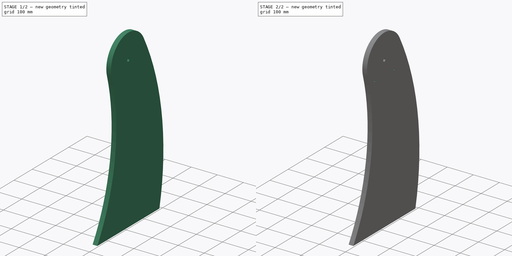
[diagram: build sequence overview — one tinted view per stage of 2, left to right]
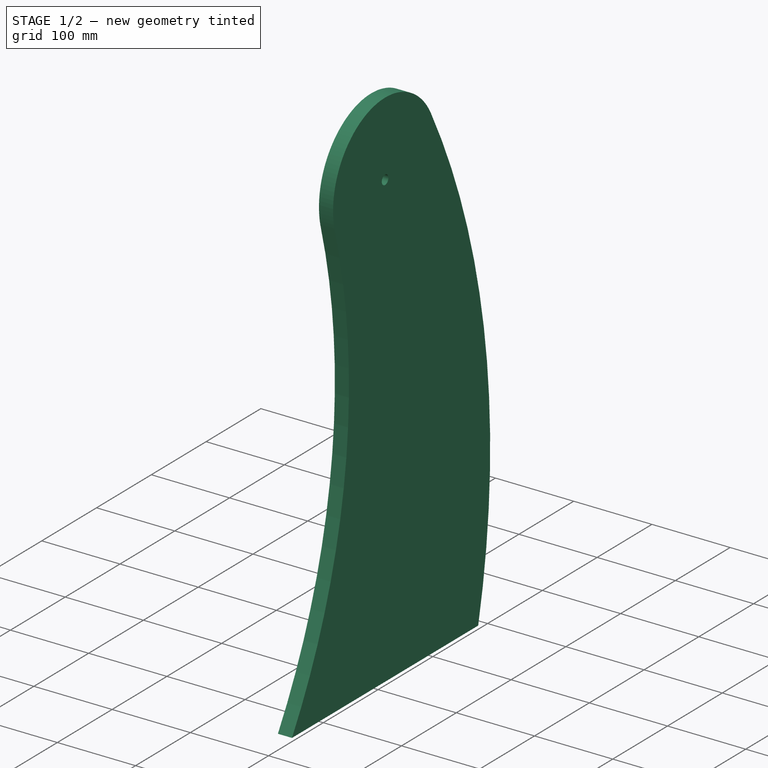
[diagram: stage 1 of 2 — iso view after this stage's code; geometry added in this stage tinted green]
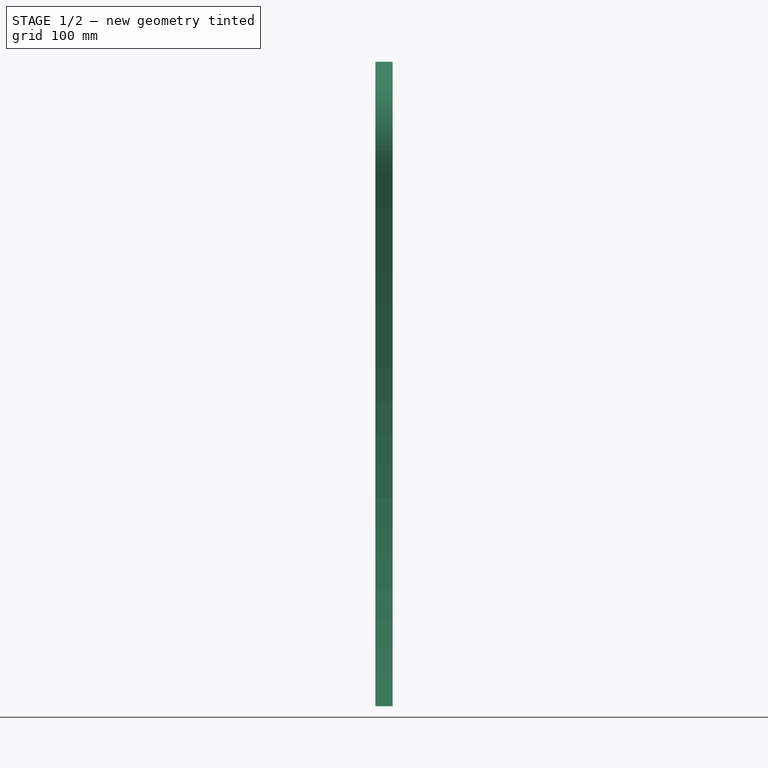
[diagram: stage 1 of 2 — front view after this stage's code; geometry added in this stage tinted green]
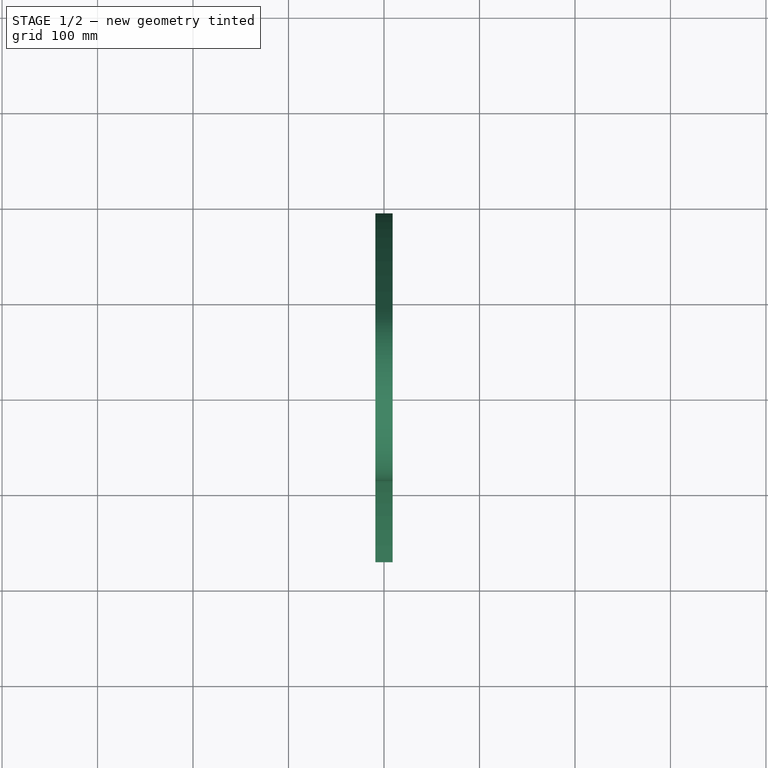
[diagram: stage 1 of 2 — top view after this stage's code; geometry added in this stage tinted green]
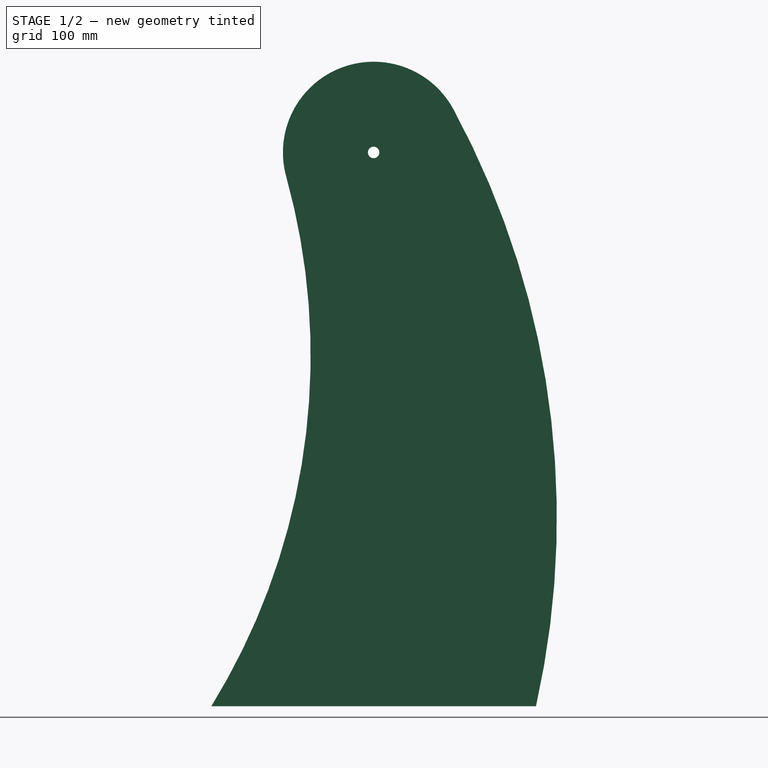
[diagram: stage 1 of 2 — right view after this stage's code; geometry added in this stage tinted green]
FCSTD DOCUMENT  (FreeCAD 2020.10.16R22739 +2665 (Git))
Label: plyta-boczna
License: All rights reserved
LicenseURL: http://en.wikipedia.org/wiki/All_rights_reserved
objects: Sketcher::SketchObject×3, PartDesign::Pad×1, PartDesign::Pocket×1, PartDesign::Line×1, PartDesign::Body×1
note: 11 computed .brp shape members not serialized (recipe doc carries the construction recipe); baked Part::Feature solids carry a one-line shape summary decoded from their .brp

FEATURE [Sketcher::SketchObject] Sketch
  MapMode = 5
  Placement = pos=(0,0,0) rot=(0.57735,0.57735,0.57735;2.0944rad)
  Support = -> [YZ_Plane]
  sketch-geometry (5):
    g0: ArcOfCircle CenterX=0 CenterY=580 CenterZ=0 NormalX=0 NormalY=0 NormalZ=1 AngleXU=0 Radius=95 StartAngle=0.495618 EndAngle=3.41262
    g1: ArcOfCircle CenterX=-765.98 CenterY=367.162 CenterZ=0 NormalX=0 NormalY=0 NormalZ=1 AngleXU=0 Radius=700 StartAngle=5.73104 EndAngle=6.55421
    g2: ArcOfCircle CenterX=-708.138 CenterY=197.162 CenterZ=0 NormalX=0 NormalY=0 NormalZ=1 AngleXU=0 Radius=900 StartAngle=6.06233 EndAngle=6.7788
    g3: LineSegment StartX=-170 StartY=0 StartZ=0 EndX=170 EndY=0 EndZ=0
    g4: Circle CenterX=0 CenterY=580 CenterZ=0 NormalX=0 NormalY=0 NormalZ=1 AngleXU=0 Radius=6
  constraints (16):
    c: PointOnObject(g0,g-2)
    c: Radius(g0) = 95
    c: DistanceY(g-1,g0) = 580
    c: PointOnObject(g1,g-1)
    c: PointOnObject(g2,g-1)
    c: Tangent(g2,g0)
    c: Coincident(g3,g1)
    c: Coincident(g3,g2)
    c: DistanceX(g3,g3) = 340
    c: DistanceX(g1,g-1) = 170
    c: Radius(g1) = 700
    c: Radius(g2) = 900
    c: Coincident(g0,g2)
    c: Tangent(g0,g1) = 1.5708
    c: Coincident(g4,g0)
    c: Radius(g4) = 6
FEATURE [PartDesign::Pad] Pad
  AllowMultiFace = false
  ClaimChildren = false
  Direction = (1,1,1)
  Length = 18
  Length2 = 100
  Midplane = true
  NewSolid = false
  Placement = pos=(0,0,0) rot=(0.57735,0.57735,0.57735;2.0944rad)
  Profile = -> Sketch
  Suppress = false
  Type = 0
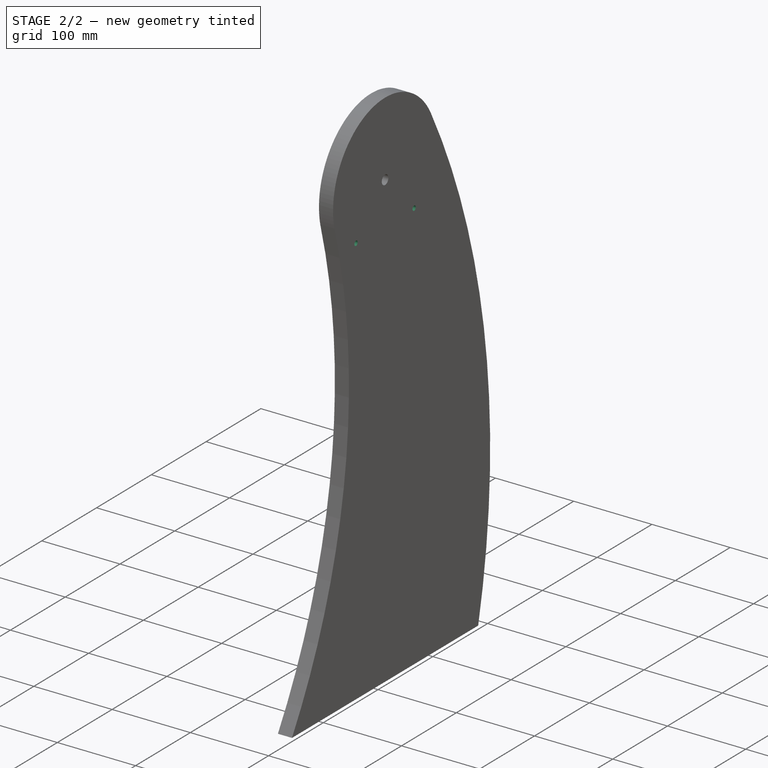
[diagram: stage 2 of 2 — iso view after this stage's code; geometry added in this stage tinted green]
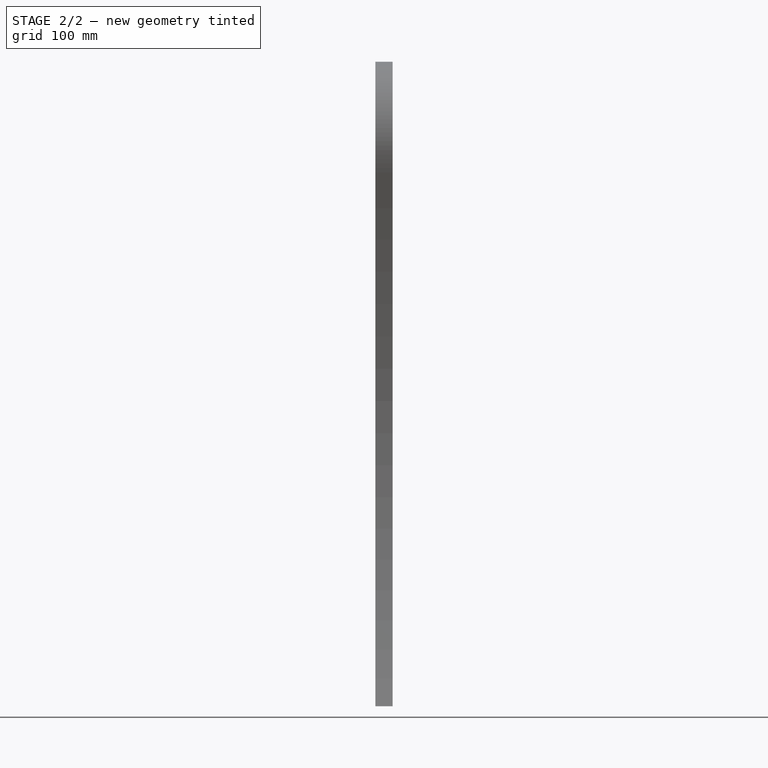
[diagram: stage 2 of 2 — front view after this stage's code; geometry added in this stage tinted green]
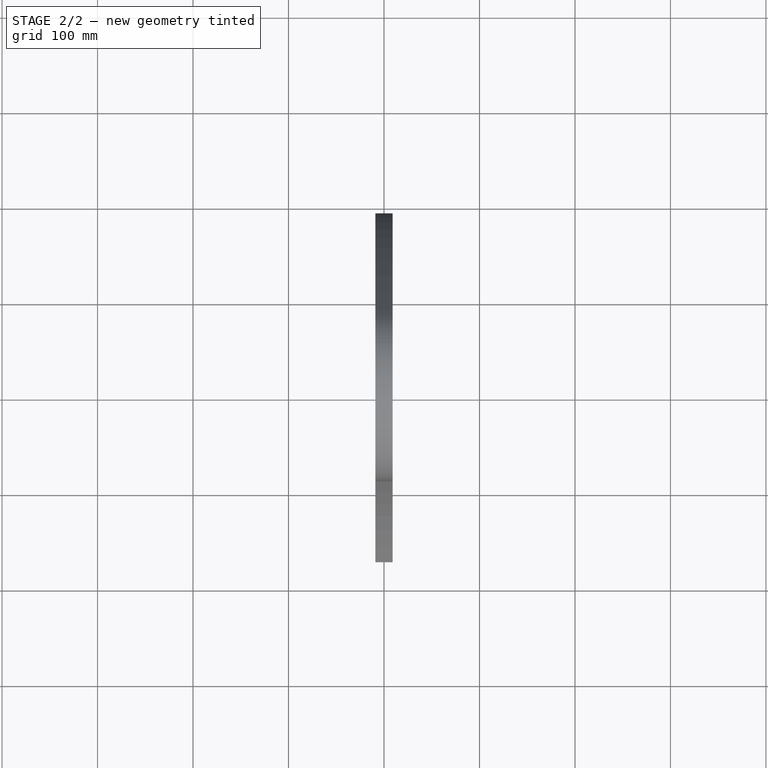
[diagram: stage 2 of 2 — top view after this stage's code; geometry added in this stage tinted green]
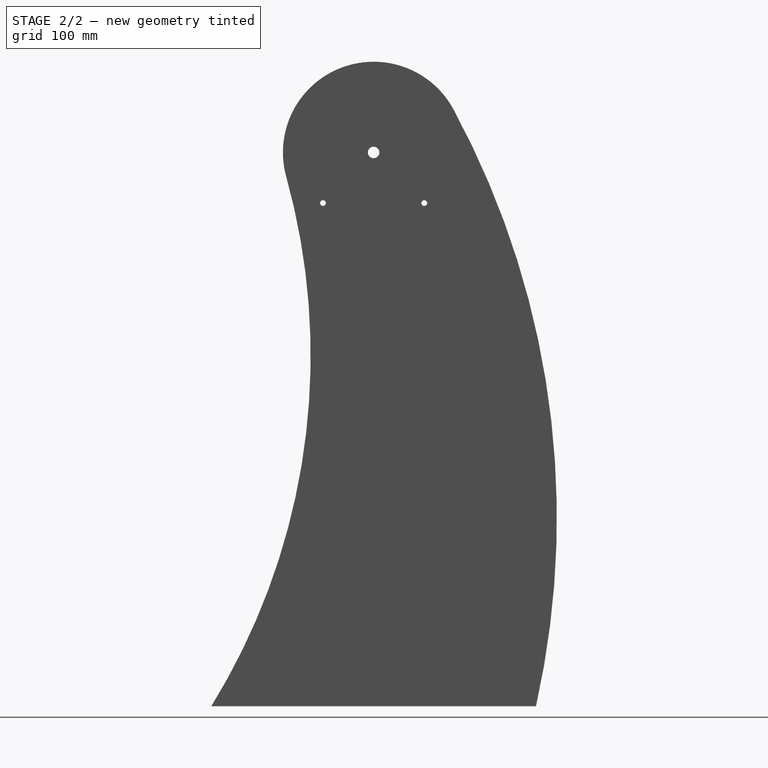
[diagram: stage 2 of 2 — right view after this stage's code; geometry added in this stage tinted green]
FEATURE [Sketcher::SketchObject] Sketch001
  ExternalGeometry = -> [Pad]
  MapMode = 5
  Placement = pos=(9,-1.0152e-12,1.0162e-12) rot=(0.57735,0.57735,0.57735;2.0944rad)
  Support = -> [Pad]
  sketch-geometry (5):
    g0: Circle [constr] CenterX=0 CenterY=580 CenterZ=0 NormalX=0 NormalY=0 NormalZ=1 AngleXU=0 Radius=75
    g1: LineSegment [constr] StartX=0 StartY=580 StartZ=0 EndX=-53.033 EndY=526.967 EndZ=0
    g2: LineSegment [constr] StartX=0 StartY=580 StartZ=0 EndX=53.033 EndY=526.967 EndZ=0
    g3: Circle CenterX=-53.033 CenterY=526.967 CenterZ=0 NormalX=0 NormalY=0 NormalZ=1 AngleXU=0 Radius=3
    g4: Circle CenterX=53.033 CenterY=526.967 CenterZ=0 NormalX=0 NormalY=0 NormalZ=1 AngleXU=0 Radius=3
  constraints (12):
    c: Coincident(g0,g-3)
    c: Coincident(g1,g0)
    c: PointOnObject(g1,g0)
    c: Coincident(g2,g0)
    c: PointOnObject(g2,g0)
    c: Angle(g1,g2) = 1.5708
    c: Angle(g1) = -2.35619
    c: Radius(g0) = 75
    c: Coincident(g3,g1)
    c: Coincident(g4,g2)
    c: Equal(g4,g3)
    c: Radius(g4) = 3
FEATURE [PartDesign::Pocket] Pocket
  AllowMultiFace = false
  BaseFeature = -> Pad
  ClaimChildren = false
  Length = 5
  Length2 = 100
  NewSolid = false
  Placement = pos=(0,0,0) rot=(0.57735,0.57735,0.57735;2.0944rad)
  Profile = -> Sketch001
  Suppress = false
  Type = 1
FEATURE [PartDesign::Line] DatumLine
  AttacherType = Attacher::AttachEngineLine
  Length = 18
  MapMode = 19
  Placement = pos=(9,6.45235e-11,580) rot=(0.57735,0.57735,0.57735;2.0944rad)
  ResizeMode = 0
  Support = -> [Pocket]
FEATURE [Sketcher::SketchObject] Sketch002
  ExternalGeometry = -> [Pocket]
  MapMode = 5
  Placement = pos=(9,-1.0152e-12,1.0162e-12) rot=(0.57735,0.57735,0.57735;2.0944rad)
  Support = -> [Pocket]
  sketch-geometry (1):
    g0: LineSegment StartX=2.416e-13 StartY=580 StartZ=0 EndX=0 EndY=0 EndZ=0
  constraints (2):
    c: Coincident(g0,g-3)
    c: Coincident(g0,g-1)
FEATURE [PartDesign::Body] Body  label="plyta-boczna"
  ExportMode = 0
  Group = -> [Sketch,Pad,Sketch001,Pocket,DatumLine,Sketch002]
  Origin = -> Origin
  SingleSolid = true
  Tip = -> Pocket
  _ExportChildren = -> [Pad,Pocket,DatumLine,Sketch002]
  _GroupVersion = 1
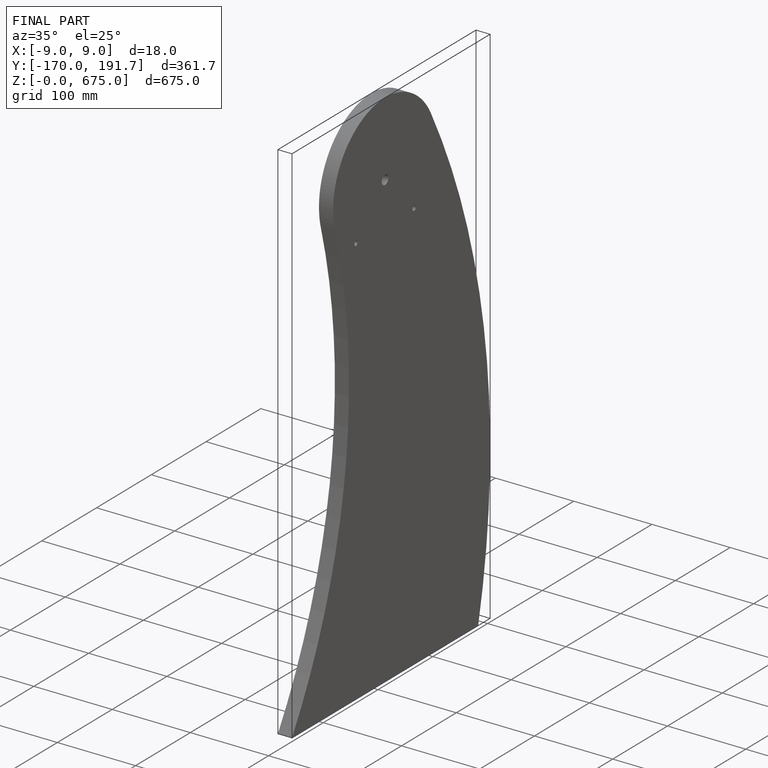
[diagram: finished part — iso view with bounding-box wireframe]
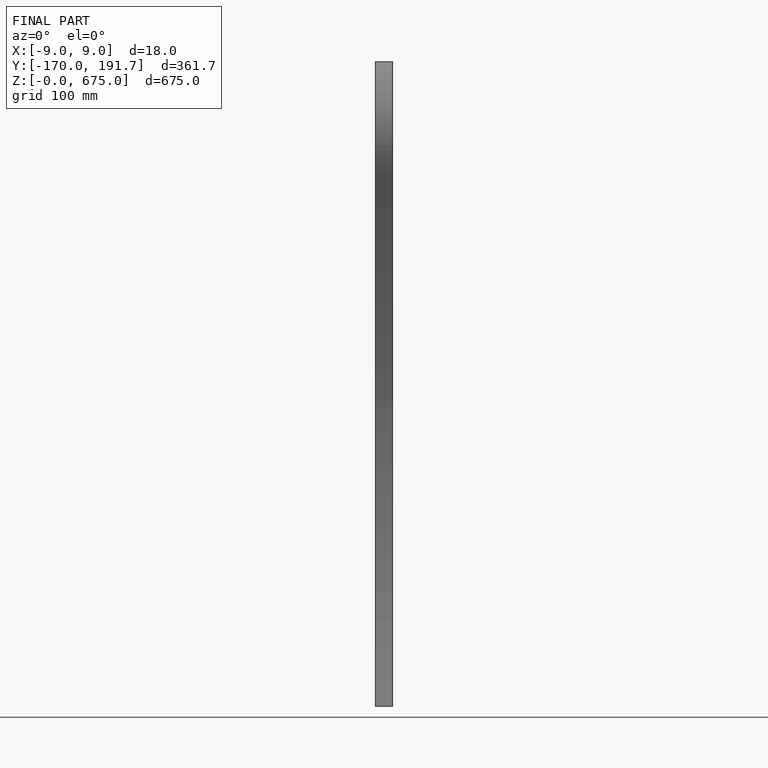
[diagram: finished part — front view with bounding-box wireframe]
